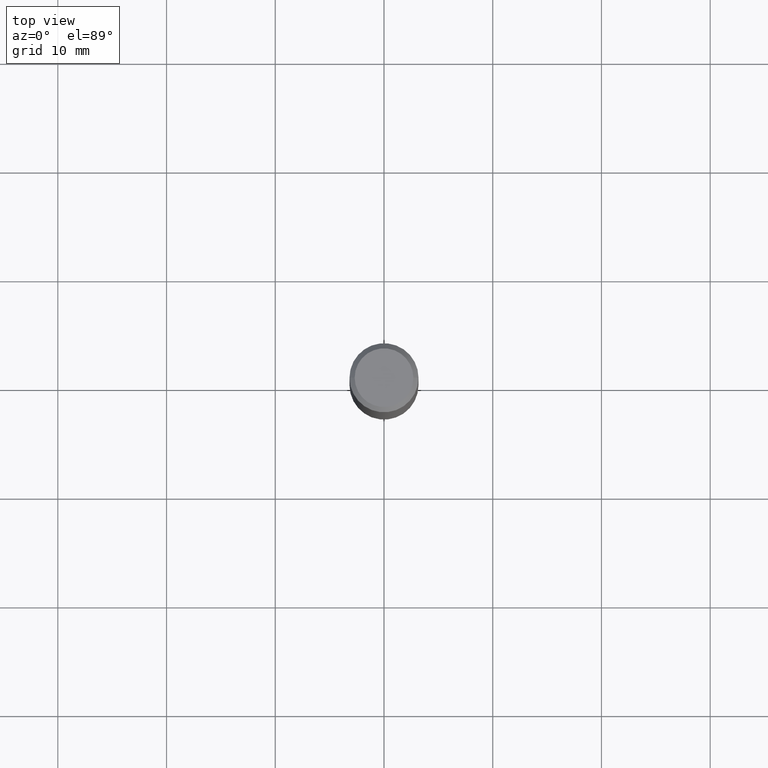
[diagram: clean part render]
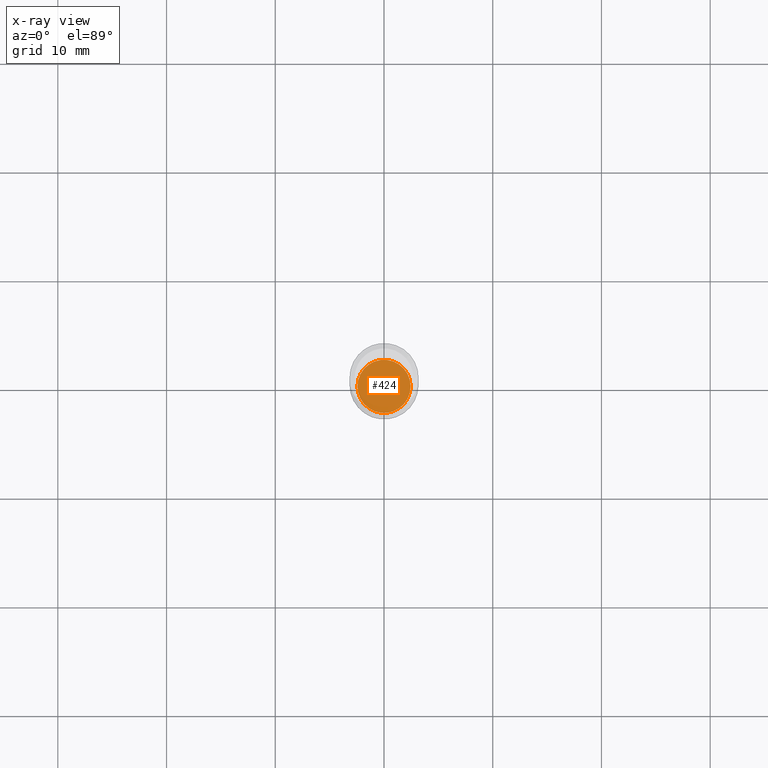
[diagram: x-ray — body ghosted, one internal face saturated and labeled with its STEP entity id]
A machine part, top view, then the same camera in x-ray: the body is ghosted and one INTERNAL B-rep face — a face not visible from any outside direction — is saturated and labeled: STEP entity #424.
In plain terms, the highlighted planar face has unit normal (-0, 0, 1).
Its self-contained STEP definition (entity closure, byte-faithful):
#17 = AXIS2_PLACEMENT_3D ( 'NONE', #406, #42, #186 ) ;
#42 = DIRECTION ( 'NONE',  ( -2.438088387897960049E-29, 3.491481338843145188E-15, 1.000000000000000000 ) ) ;
#79 = EDGE_LOOP ( 'NONE', ( #83, #353 ) ) ;
#80 = DIRECTION ( 'NONE',  ( -2.445468806185136597E-29, 3.491481338843145583E-15, 1.000000000000000000 ) ) ;
#83 = ORIENTED_EDGE ( 'NONE', *, *, #329, .F. ) ;
#157 = DIRECTION ( 'NONE',  ( 1.000000000000000000, -6.982962677686269077E-15, 0.000000000000000000 ) ) ;
#186 = DIRECTION ( 'NONE',  ( 1.000000000000000000, -6.982962677686265922E-15, 4.876176775795935793E-29 ) ) ;
#193 = CARTESIAN_POINT ( 'NONE',  ( 0.09625000000000000222, -7.021368972413563455E-15, -1.818500000000000005 ) ) ;
#199 = VERTEX_POINT ( 'NONE', #288 ) ;
#215 = CARTESIAN_POINT ( 'NONE',  ( 4.447085024047671457E-29, -6.349258814686260126E-15, -1.818500000000000005 ) ) ;
#232 = AXIS2_PLACEMENT_3D ( 'NONE', #372, #492, #157 ) ;
#257 = PLANE ( 'NONE',  #17 ) ;
#288 = CARTESIAN_POINT ( 'NONE',  ( -0.09625000000000000222, -5.662712204343052875E-15, -1.818500000000000005 ) ) ;
#293 = AXIS2_PLACEMENT_3D ( 'NONE', #215, #80, #299 ) ;
#299 = DIRECTION ( 'NONE',  ( 1.000000000000000000, -6.982962677686269077E-15, 0.000000000000000000 ) ) ;
#302 = CIRCLE ( 'NONE', #293, 0.09625000000000000222 ) ;
#306 = EDGE_CURVE ( 'NONE', #199, #360, #302, .T. ) ;
#329 = EDGE_CURVE ( 'NONE', #360, #199, #337, .T. ) ;
#337 = CIRCLE ( 'NONE', #232, 0.09625000000000000222 ) ;
#353 = ORIENTED_EDGE ( 'NONE', *, *, #306, .F. ) ;
#360 = VERTEX_POINT ( 'NONE', #193 ) ;
#372 = CARTESIAN_POINT ( 'NONE',  ( 4.447085024047671457E-29, -6.349258814686260126E-15, -1.818500000000000005 ) ) ;
#406 = CARTESIAN_POINT ( 'NONE',  ( 4.447085024047671457E-29, -6.349258814686260126E-15, -1.818500000000000005 ) ) ;
#407 = FACE_OUTER_BOUND ( 'NONE', #79, .T. ) ;
#424 = ADVANCED_FACE ( 'NONE', ( #407 ), #257, .F. ) ;
#492 = DIRECTION ( 'NONE',  ( -2.445468806185136597E-29, 3.491481338843145583E-15, 1.000000000000000000 ) ) ;